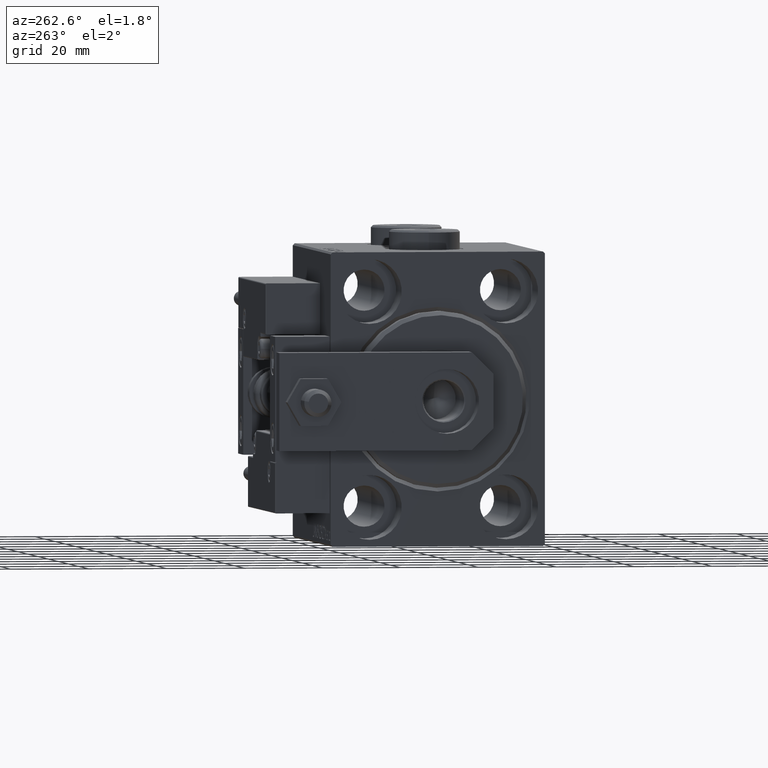
[diagram: clean part render]
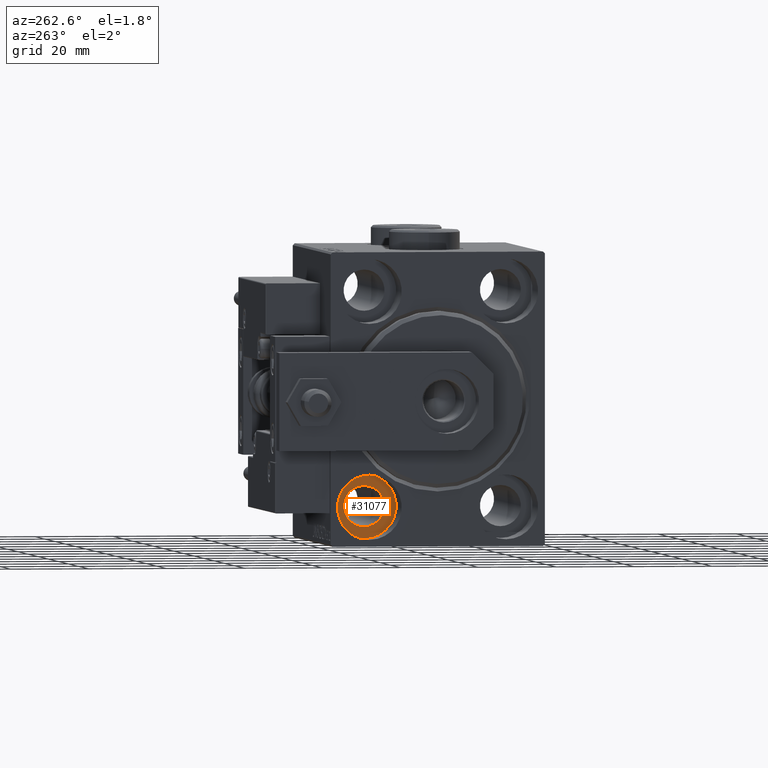
[diagram: same view with one face highlighted and labeled with its STEP entity id]
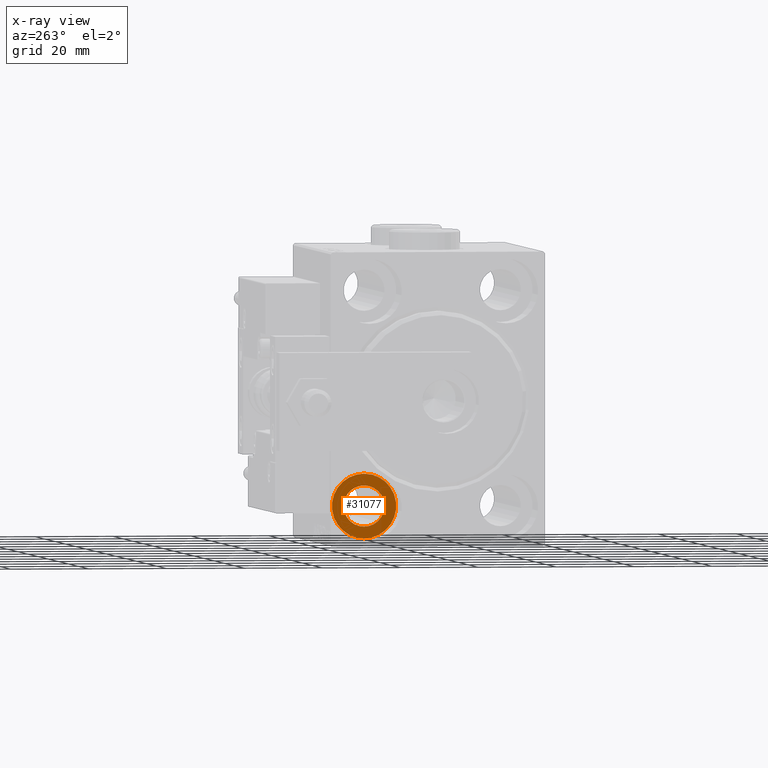
[diagram: x-ray of the same camera — body ghosted, the highlighted face saturated]
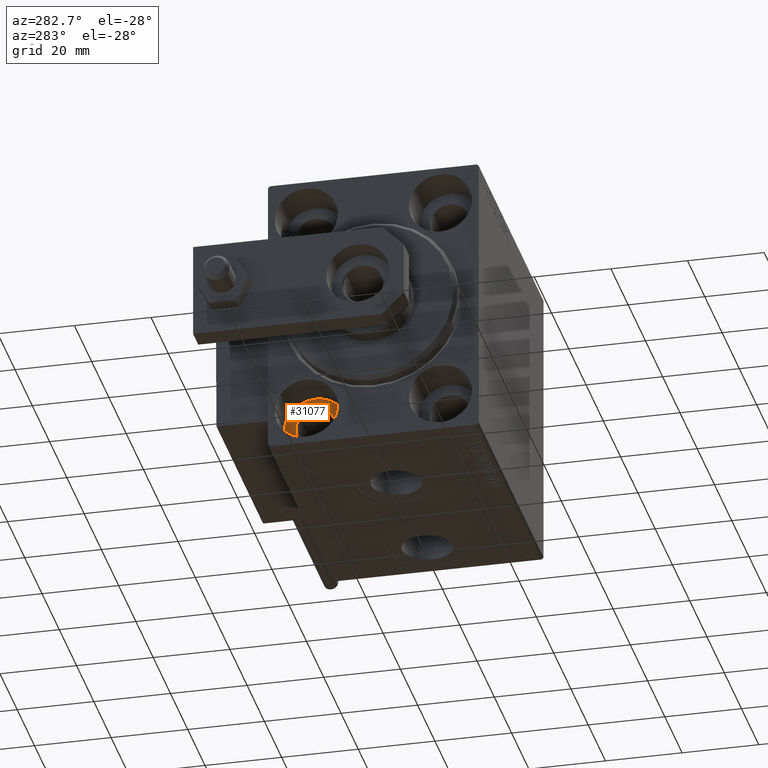
[diagram: same view with one face highlighted and labeled with its STEP entity id]
A machine part, auxiliary view. The second image highlights one B-rep face of the part: STEP entity #31077.
The next image is the same camera in x-ray: the body ghosted, the highlighted face saturated — about 0% of this face is hidden behind the body in this view.
A second angle (auxiliary view) of the same face is appended — the face is thin or edge-on in the first view.
In plain terms, the highlighted planar face has unit normal (-1, 0, 0).
Its self-contained STEP definition (entity closure, byte-faithful):
#1037 = AXIS2_PLACEMENT_3D ( 'NONE', #7517, #46886, #19524 ) ;
#2565 = CARTESIAN_POINT ( 'NONE',  ( 10.99999999999999645, 17.49999999999999645, -22.25000000000000355 ) ) ;
#3357 = EDGE_LOOP ( 'NONE', ( #17416, #11599 ) ) ;
#5188 = CIRCLE ( 'NONE', #9349, 5.250000000000000888 ) ;
#6633 = FACE_BOUND ( 'NONE', #49513, .T. ) ;
#7517 = CARTESIAN_POINT ( 'NONE',  ( 11.00000000000000000, 17.49999999999999645, -27.50000000000000355 ) ) ;
#9349 = AXIS2_PLACEMENT_3D ( 'NONE', #45938, #10226, #26137 ) ;
#10226 = DIRECTION ( 'NONE',  ( -1.000000000000000000, 0.000000000000000000, 0.000000000000000000 ) ) ;
#10994 = CIRCLE ( 'NONE', #1037, 8.250000000000000000 ) ;
#11138 = AXIS2_PLACEMENT_3D ( 'NONE', #36715, #28126, #16387 ) ;
#11599 = ORIENTED_EDGE ( 'NONE', *, *, #47835, .T. ) ;
#12857 = AXIS2_PLACEMENT_3D ( 'NONE', #34530, #21507, #37404 ) ;
#15814 = CARTESIAN_POINT ( 'NONE',  ( 11.00000000000000000, 17.49999999999999645, -27.50000000000000355 ) ) ;
#16387 = DIRECTION ( 'NONE',  ( 0.000000000000000000, 0.000000000000000000, 1.000000000000000000 ) ) ;
#17416 = ORIENTED_EDGE ( 'NONE', *, *, #25196, .T. ) ;
#19524 = DIRECTION ( 'NONE',  ( 0.000000000000000000, 0.000000000000000000, 1.000000000000000000 ) ) ;
#20512 = DIRECTION ( 'NONE',  ( -1.000000000000000000, 0.000000000000000000, 0.000000000000000000 ) ) ;
#21123 = CIRCLE ( 'NONE', #11138, 5.250000000000000888 ) ;
#21278 = ORIENTED_EDGE ( 'NONE', *, *, #32770, .F. ) ;
#21507 = DIRECTION ( 'NONE',  ( -1.000000000000000000, 0.000000000000000000, 0.000000000000000000 ) ) ;
#22541 = PLANE ( 'NONE',  #12857 ) ;
#25196 = EDGE_CURVE ( 'NONE', #32891, #25380, #10994, .T. ) ;
#25380 = VERTEX_POINT ( 'NONE', #37922 ) ;
#25846 = EDGE_CURVE ( 'NONE', #38276, #27276, #5188, .T. ) ;
#26137 = DIRECTION ( 'NONE',  ( 0.000000000000000000, 0.000000000000000000, 1.000000000000000000 ) ) ;
#26194 = FACE_OUTER_BOUND ( 'NONE', #3357, .T. ) ;
#27276 = VERTEX_POINT ( 'NONE', #2565 ) ;
#28126 = DIRECTION ( 'NONE',  ( -1.000000000000000000, 0.000000000000000000, 0.000000000000000000 ) ) ;
#29750 = CARTESIAN_POINT ( 'NONE',  ( 11.00000000000000000, 17.49999999999999645, -19.25000000000000355 ) ) ;
#31077 = ADVANCED_FACE ( 'NONE', ( #6633, #26194 ), #22541, .T. ) ;
#32770 = EDGE_CURVE ( 'NONE', #27276, #38276, #21123, .T. ) ;
#32891 = VERTEX_POINT ( 'NONE', #29750 ) ;
#34530 = CARTESIAN_POINT ( 'NONE',  ( 11.00000000000000000, 17.49999999999999645, -27.50000000000000355 ) ) ;
#34534 = CARTESIAN_POINT ( 'NONE',  ( 10.99999999999999645, 17.49999999999999645, -32.75000000000000000 ) ) ;
#36407 = DIRECTION ( 'NONE',  ( 0.000000000000000000, 0.000000000000000000, 1.000000000000000000 ) ) ;
#36715 = CARTESIAN_POINT ( 'NONE',  ( 10.99999999999999645, 17.49999999999999645, -27.50000000000000355 ) ) ;
#37404 = DIRECTION ( 'NONE',  ( 0.000000000000000000, 0.000000000000000000, 1.000000000000000000 ) ) ;
#37922 = CARTESIAN_POINT ( 'NONE',  ( 11.00000000000000000, 17.49999999999999645, -35.75000000000000711 ) ) ;
#38276 = VERTEX_POINT ( 'NONE', #34534 ) ;
#40674 = CIRCLE ( 'NONE', #51484, 8.250000000000000000 ) ;
#45938 = CARTESIAN_POINT ( 'NONE',  ( 10.99999999999999645, 17.49999999999999645, -27.50000000000000355 ) ) ;
#46886 = DIRECTION ( 'NONE',  ( -1.000000000000000000, 0.000000000000000000, 0.000000000000000000 ) ) ;
#47293 = ORIENTED_EDGE ( 'NONE', *, *, #25846, .F. ) ;
#47835 = EDGE_CURVE ( 'NONE', #25380, #32891, #40674, .T. ) ;
#49513 = EDGE_LOOP ( 'NONE', ( #21278, #47293 ) ) ;
#51484 = AXIS2_PLACEMENT_3D ( 'NONE', #15814, #20512, #36407 ) ;